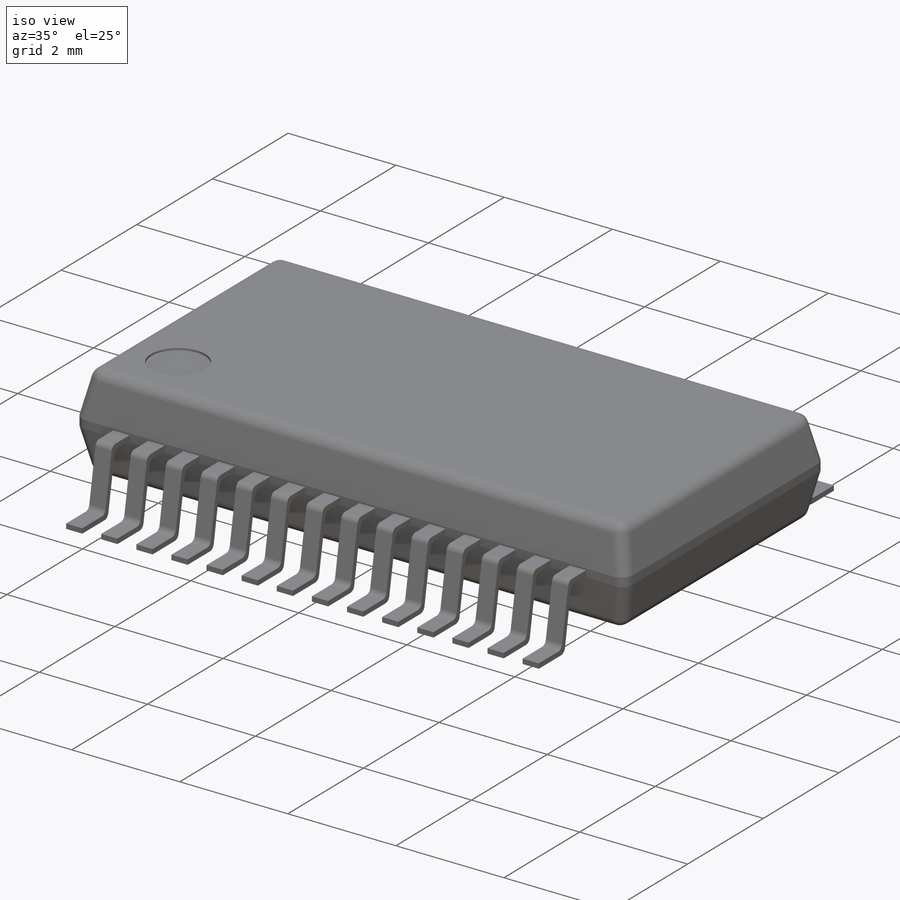
[diagram: iso view]
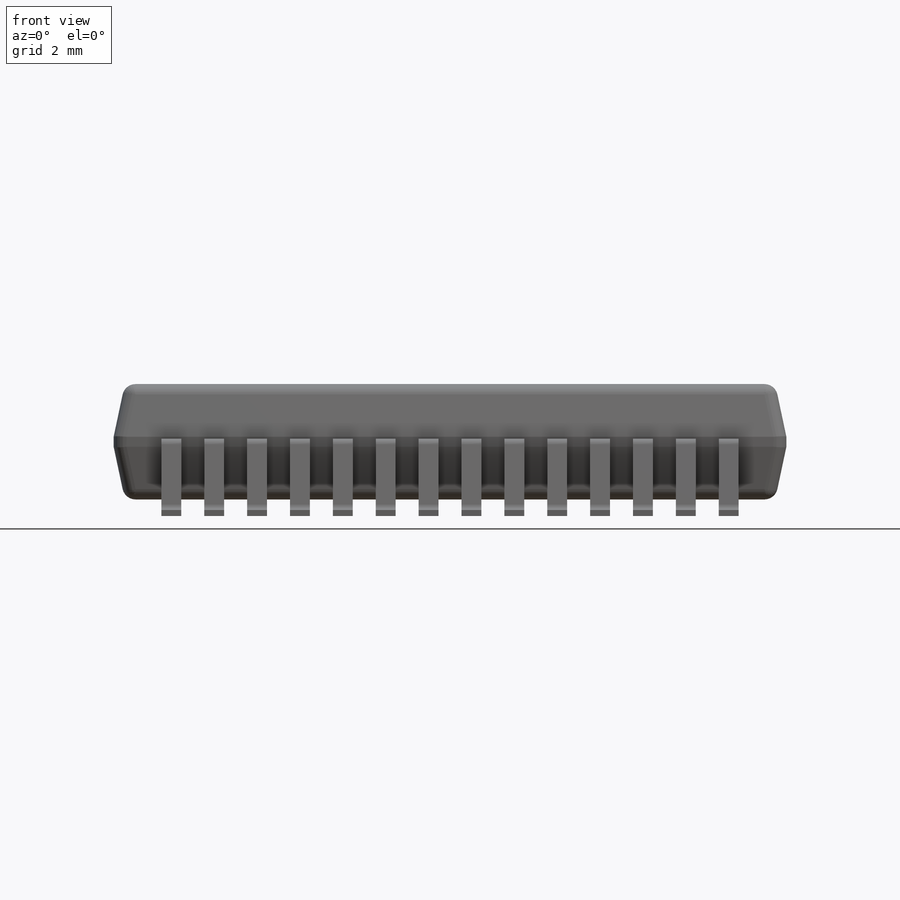
[diagram: front view]
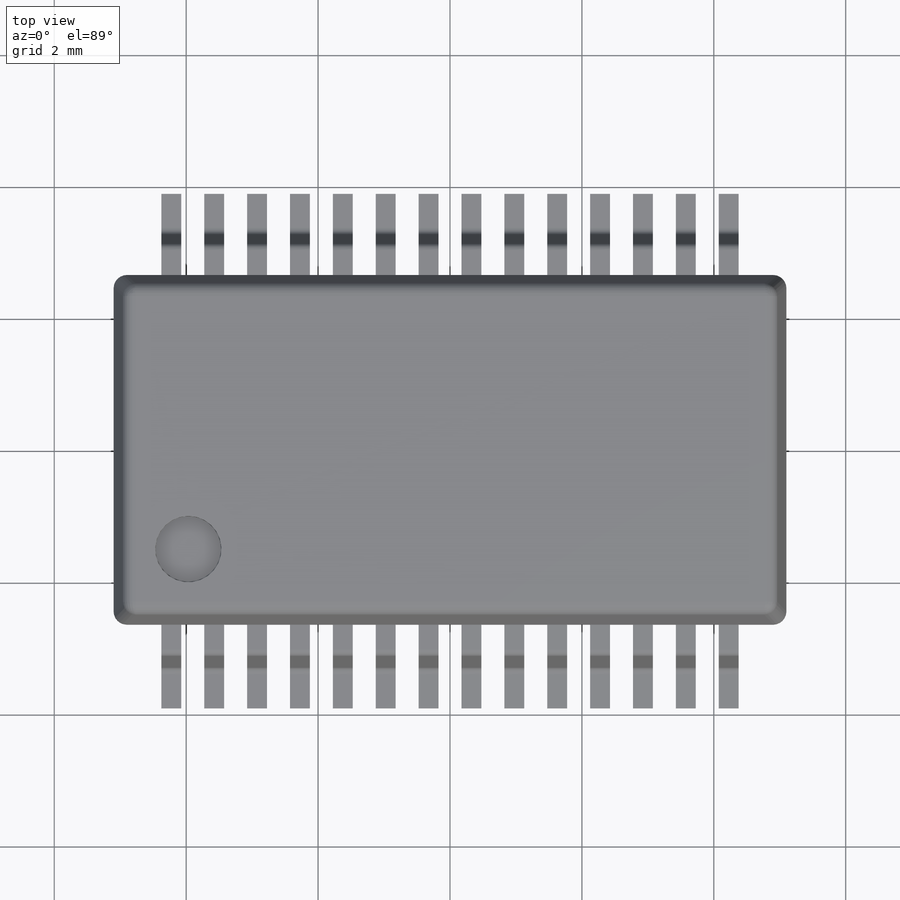
[diagram: top view]
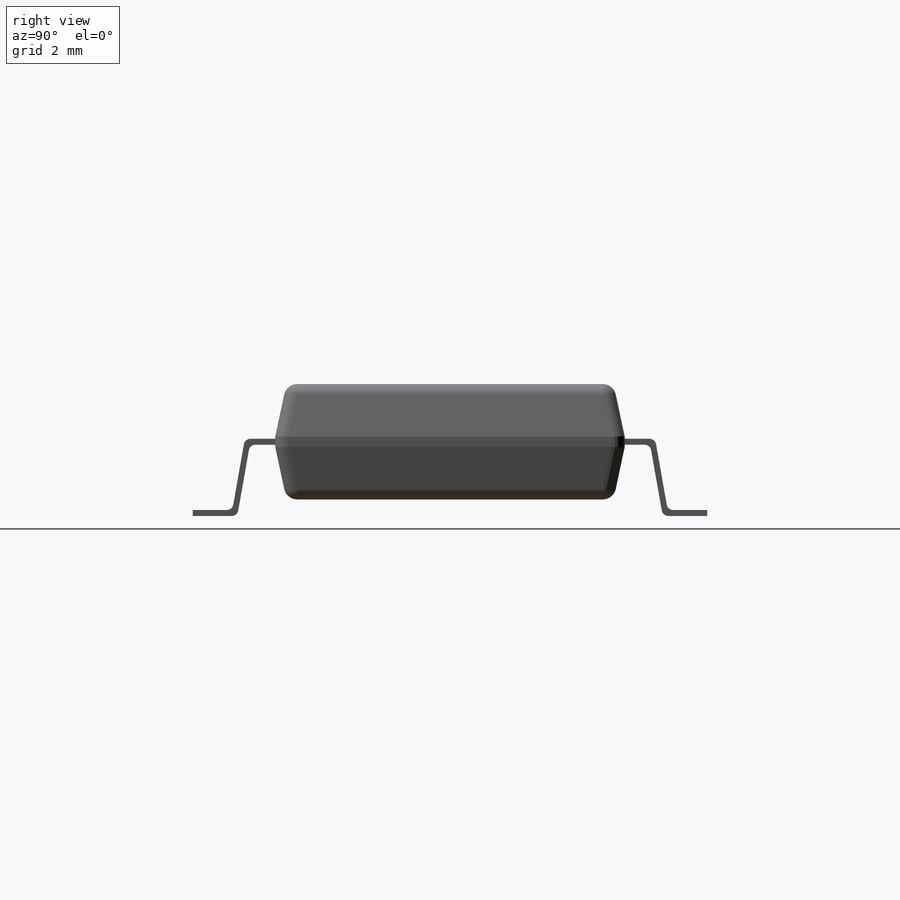
[diagram: right view]
SOLIDWORKS PART (.sldprt)
format: sldprt  version: not decoded by parser v0  size: 549,888 bytes
history: native  units: mm
features: sketch x3, extrude x2, chamfer x2, fillet x2, material x1, pattern_linear x1, mirror x1, cut_extrude x1 (+12 scaffold rows collapsed)
feature tree (25):
  scaffold x12  (default folders/planes/origin — collapsed)
  material  "Material <not specified>"
  sketch  "Sketch1"  dims[D1=10.2mm D2=5.3mm]
  extrude  "Boss-Extrude1"  Depth=1.75mm
  sketch  "Sketch2"  dims[c1.D8=0.1mm c1.D1=1.25mm c1.D2=0.09mm c1.D3=0.09mm c1.D4=0.09mm c1.D5=0.045mm c1.D6=0.675mm c1.D7=1.08mm c2.D7=100.0deg]
  extrude  "Boss-Extrude2"  Depth=0.3mm
  pattern_linear  "LPattern1"  Count1=14 Count2=1 Spacing1=0.65mm Spacing2=10mm
  mirror  "Mirror1"
  chamfer  "Chamfer1"  Distance=0.8mm Angle=12deg
  chamfer  "Chamfer2"  Distance=0.8mm Angle=12deg
  fillet  "Fillet1"  Radius=0.2mm
  sketch  "Sketch3"  dims[D1=1.0mm D2=0.8mm D3=0.8mm]
  cut_extrude  "Cut-Extrude1"  Depth=0.05mm
  fillet  "Fillet2"  Radius=0.01mm
decode coverage: 11 of 12 modeling features carry decoded parameters
note: suppression state not decoded; provenance and decode notes live in map.json
